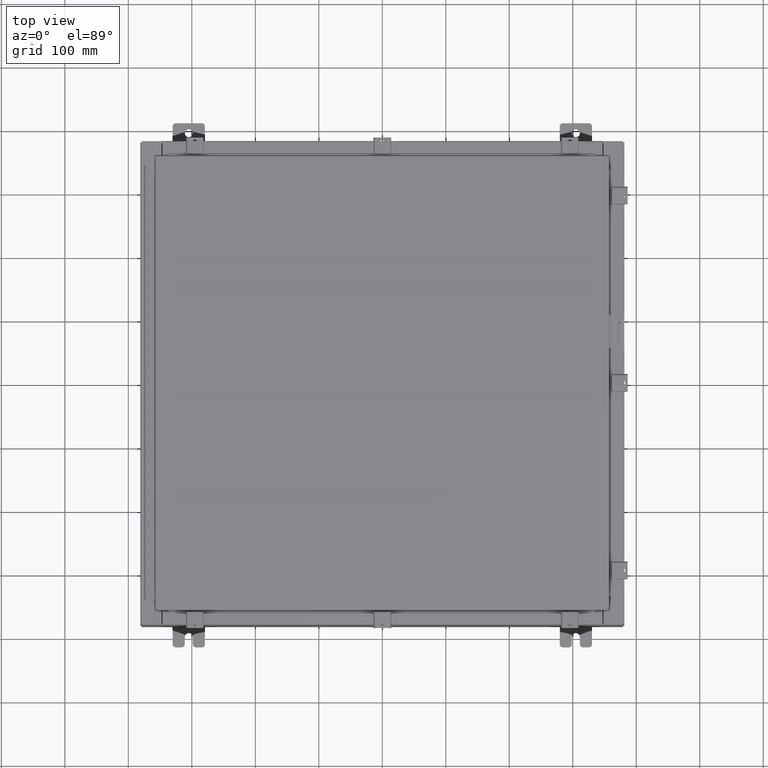
[diagram: clean part render]
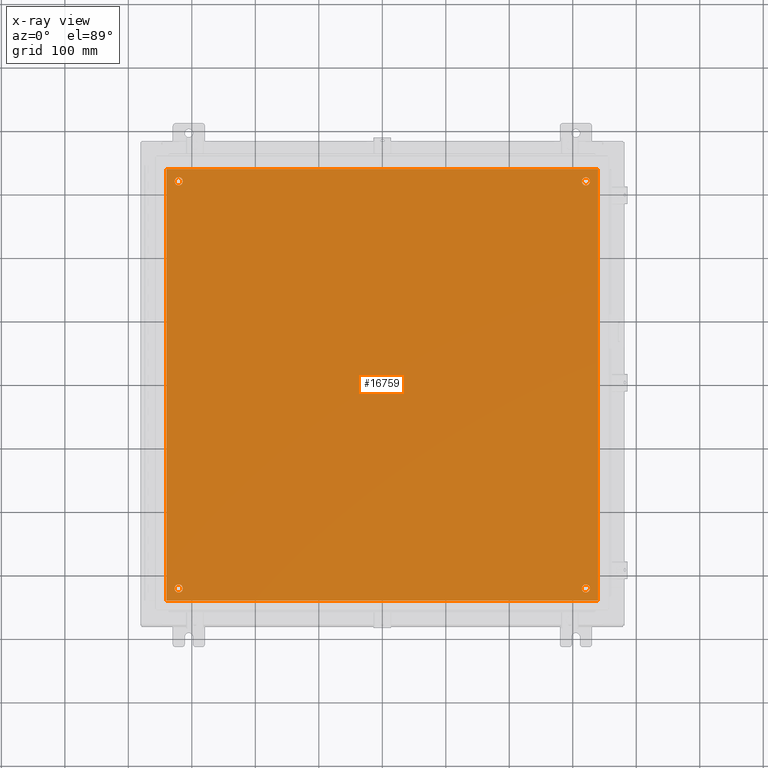
[diagram: x-ray — body ghosted, one internal face saturated and labeled with its STEP entity id]
A machine part, top view, then the same camera in x-ray: the body is ghosted and one INTERNAL B-rep face — a face not visible from any outside direction — is saturated and labeled: STEP entity #16759.
In plain terms, the highlighted planar face has unit normal (0, 0, -1).
Its self-contained STEP definition (entity closure, byte-faithful):
#632 = ORIENTED_EDGE ( 'NONE', *, *, #4933, .F. ) ;
#721 = CARTESIAN_POINT ( 'NONE',  ( -13.50000000000000000, -13.38299999999999900, -0.1040000000000009100 ) ) ;
#957 = DIRECTION ( 'NONE',  ( -0.0000000000000000000, -0.0000000000000000000, 1.000000000000000000 ) ) ;
#1029 = CARTESIAN_POINT ( 'NONE',  ( -12.37500000000000400, -12.62500000000000000, -0.1039999999999999800 ) ) ;
#1283 = CARTESIAN_POINT ( 'NONE',  ( 12.62500000000000400, 12.62500000000000000, -0.1039999999999999800 ) ) ;
#1324 = AXIS2_PLACEMENT_3D ( 'NONE', #30999, #16146, #36928 ) ;
#1536 = CIRCLE ( 'NONE', #5555, 0.2500000000000008900 ) ;
#1576 = CARTESIAN_POINT ( 'NONE',  ( 13.50000000000000000, 13.38299999999999900, -0.1040000000000009100 ) ) ;
#1604 = EDGE_LOOP ( 'NONE', ( #12507, #24484 ) ) ;
#1890 = CARTESIAN_POINT ( 'NONE',  ( 12.87500000000000500, -12.62500000000000000, -0.1039999999999999800 ) ) ;
#2802 = VERTEX_POINT ( 'NONE', #1029 ) ;
#3196 = FACE_BOUND ( 'NONE', #1604, .T. ) ;
#3348 = EDGE_CURVE ( 'NONE', #25382, #11533, #32634, .T. ) ;
#4284 = CARTESIAN_POINT ( 'NONE',  ( -13.38299999999999900, 13.38299999999999700, -0.1040000000000009100 ) ) ;
#4363 = ORIENTED_EDGE ( 'NONE', *, *, #26489, .T. ) ;
#4450 = EDGE_CURVE ( 'NONE', #8105, #29618, #29321, .T. ) ;
#4537 = DIRECTION ( 'NONE',  ( -1.000000000000000000, -0.0000000000000000000, -0.0000000000000000000 ) ) ;
#4933 = EDGE_CURVE ( 'NONE', #17863, #38444, #5484, .T. ) ;
#5465 = VECTOR ( 'NONE', #4537, 39.37007874015748100 ) ;
#5484 = LINE ( 'NONE', #26696, #20420 ) ;
#5529 = DIRECTION ( 'NONE',  ( -0.0000000000000000000, -0.0000000000000000000, 1.000000000000000000 ) ) ;
#5555 = AXIS2_PLACEMENT_3D ( 'NONE', #28579, #10747, #31598 ) ;
#5667 = EDGE_CURVE ( 'NONE', #20180, #16447, #19896, .T. ) ;
#6987 = ORIENTED_EDGE ( 'NONE', *, *, #30737, .T. ) ;
#7130 = CARTESIAN_POINT ( 'NONE',  ( 12.87500000000000500, 12.62500000000000000, -0.1039999999999999800 ) ) ;
#7399 = DIRECTION ( 'NONE',  ( -0.0000000000000000000, -0.0000000000000000000, 1.000000000000000000 ) ) ;
#8105 = VERTEX_POINT ( 'NONE', #1890 ) ;
#8388 = DIRECTION ( 'NONE',  ( -0.0000000000000000000, -0.0000000000000000000, 1.000000000000000000 ) ) ;
#8616 = ORIENTED_EDGE ( 'NONE', *, *, #5667, .F. ) ;
#10230 = CIRCLE ( 'NONE', #21802, 0.2500000000000008900 ) ;
#10361 = AXIS2_PLACEMENT_3D ( 'NONE', #18801, #957, #21792 ) ;
#10747 = DIRECTION ( 'NONE',  ( -0.0000000000000000000, -0.0000000000000000000, 1.000000000000000000 ) ) ;
#11061 = EDGE_LOOP ( 'NONE', ( #32241, #8616, #16658, #632 ) ) ;
#11145 = FACE_BOUND ( 'NONE', #32726, .T. ) ;
#11533 = VERTEX_POINT ( 'NONE', #18911 ) ;
#11595 = CARTESIAN_POINT ( 'NONE',  ( -13.38299999999999900, -13.38299999999999900, -0.1040000000000009100 ) ) ;
#12501 = LINE ( 'NONE', #1576, #5465 ) ;
#12507 = ORIENTED_EDGE ( 'NONE', *, *, #3348, .T. ) ;
#13092 = VERTEX_POINT ( 'NONE', #17776 ) ;
#13734 = DIRECTION ( 'NONE',  ( -0.0000000000000000000, -0.0000000000000000000, 1.000000000000000000 ) ) ;
#15532 = DIRECTION ( 'NONE',  ( -0.0000000000000000000, -0.0000000000000000000, 1.000000000000000000 ) ) ;
#16146 = DIRECTION ( 'NONE',  ( 0.0000000000000000000, 0.0000000000000000000, -1.000000000000000000 ) ) ;
#16171 = EDGE_CURVE ( 'NONE', #2802, #34077, #34807, .T. ) ;
#16447 = VERTEX_POINT ( 'NONE', #11595 ) ;
#16658 = ORIENTED_EDGE ( 'NONE', *, *, #18102, .F. ) ;
#16759 = ADVANCED_FACE ( 'NONE', ( #34016, #34909, #3196, #11145, #26058 ), #25028, .T. ) ;
#17528 = EDGE_CURVE ( 'NONE', #11533, #25382, #10230, .T. ) ;
#17776 = CARTESIAN_POINT ( 'NONE',  ( -12.87500000000000500, 12.62500000000000000, -0.1039999999999999800 ) ) ;
#17863 = VERTEX_POINT ( 'NONE', #26980 ) ;
#18102 = EDGE_CURVE ( 'NONE', #38444, #20180, #12501, .T. ) ;
#18181 = CIRCLE ( 'NONE', #35150, 0.2500000000000008900 ) ;
#18801 = CARTESIAN_POINT ( 'NONE',  ( 12.62500000000000400, -12.62500000000000000, -0.1039999999999999800 ) ) ;
#18911 = CARTESIAN_POINT ( 'NONE',  ( 12.37500000000000400, 12.62500000000000000, -0.1039999999999999800 ) ) ;
#19896 = LINE ( 'NONE', #32207, #27851 ) ;
#20180 = VERTEX_POINT ( 'NONE', #4284 ) ;
#20420 = VECTOR ( 'NONE', #21473, 39.37007874015748100 ) ;
#20510 = CARTESIAN_POINT ( 'NONE',  ( 12.37500000000000400, -12.62500000000000000, -0.1039999999999999800 ) ) ;
#20516 = CARTESIAN_POINT ( 'NONE',  ( -12.87500000000000500, -12.62500000000000000, -0.1039999999999999800 ) ) ;
#20799 = EDGE_LOOP ( 'NONE', ( #26073, #4363 ) ) ;
#20865 = DIRECTION ( 'NONE',  ( -1.000000000000000000, 0.0000000000000000000, 0.0000000000000000000 ) ) ;
#21473 = DIRECTION ( 'NONE',  ( 0.0000000000000000000, 1.000000000000000000, 0.0000000000000000000 ) ) ;
#21677 = CIRCLE ( 'NONE', #29259, 0.2500000000000008900 ) ;
#21792 = DIRECTION ( 'NONE',  ( -1.000000000000000000, 0.0000000000000000000, 0.0000000000000000000 ) ) ;
#21802 = AXIS2_PLACEMENT_3D ( 'NONE', #31582, #13734, #34574 ) ;
#23417 = CARTESIAN_POINT ( 'NONE',  ( -12.62500000000000400, -12.62500000000000000, -0.1039999999999999800 ) ) ;
#23998 = LINE ( 'NONE', #721, #29103 ) ;
#24482 = ORIENTED_EDGE ( 'NONE', *, *, #34811, .T. ) ;
#24484 = ORIENTED_EDGE ( 'NONE', *, *, #17528, .T. ) ;
#25028 = PLANE ( 'NONE',  #1324 ) ;
#25324 = CARTESIAN_POINT ( 'NONE',  ( -12.62500000000000400, -12.62500000000000000, -0.1039999999999999800 ) ) ;
#25382 = VERTEX_POINT ( 'NONE', #7130 ) ;
#26058 = FACE_OUTER_BOUND ( 'NONE', #11061, .T. ) ;
#26073 = ORIENTED_EDGE ( 'NONE', *, *, #4450, .T. ) ;
#26262 = AXIS2_PLACEMENT_3D ( 'NONE', #1283, #8388, #20865 ) ;
#26410 = DIRECTION ( 'NONE',  ( -1.000000000000000000, 0.0000000000000000000, 0.0000000000000000000 ) ) ;
#26489 = EDGE_CURVE ( 'NONE', #29618, #8105, #33647, .T. ) ;
#26696 = CARTESIAN_POINT ( 'NONE',  ( 13.38299999999999900, -13.38299999999999700, -0.1040000000000009100 ) ) ;
#26980 = CARTESIAN_POINT ( 'NONE',  ( 13.38299999999999900, -13.38299999999999700, -0.1040000000000009100 ) ) ;
#27526 = AXIS2_PLACEMENT_3D ( 'NONE', #25324, #7399, #28291 ) ;
#27851 = VECTOR ( 'NONE', #32124, 39.37007874015748100 ) ;
#28291 = DIRECTION ( 'NONE',  ( -1.000000000000000000, 0.0000000000000000000, 0.0000000000000000000 ) ) ;
#28579 = CARTESIAN_POINT ( 'NONE',  ( -12.62500000000000400, 12.62500000000000000, -0.1039999999999999800 ) ) ;
#28781 = CARTESIAN_POINT ( 'NONE',  ( 13.38299999999999900, 13.38299999999999700, -0.1040000000000009100 ) ) ;
#29103 = VECTOR ( 'NONE', #36518, 39.37007874015748100 ) ;
#29259 = AXIS2_PLACEMENT_3D ( 'NONE', #33414, #15532, #36355 ) ;
#29321 = CIRCLE ( 'NONE', #37756, 0.2500000000000008900 ) ;
#29618 = VERTEX_POINT ( 'NONE', #20510 ) ;
#30737 = EDGE_CURVE ( 'NONE', #34077, #2802, #18181, .T. ) ;
#30999 = CARTESIAN_POINT ( 'NONE',  ( 0.0000000000000000000, 0.0000000000000000000, -0.1039999999999999800 ) ) ;
#31582 = CARTESIAN_POINT ( 'NONE',  ( 12.62500000000000400, 12.62500000000000000, -0.1039999999999999800 ) ) ;
#31598 = DIRECTION ( 'NONE',  ( -1.000000000000000000, 0.0000000000000000000, 0.0000000000000000000 ) ) ;
#31993 = ORIENTED_EDGE ( 'NONE', *, *, #36090, .T. ) ;
#32124 = DIRECTION ( 'NONE',  ( 0.0000000000000000000, -1.000000000000000000, 0.0000000000000000000 ) ) ;
#32207 = CARTESIAN_POINT ( 'NONE',  ( -13.38299999999999900, 13.38299999999999700, -0.1040000000000009100 ) ) ;
#32241 = ORIENTED_EDGE ( 'NONE', *, *, #34336, .F. ) ;
#32634 = CIRCLE ( 'NONE', #26262, 0.2500000000000008900 ) ;
#32726 = EDGE_LOOP ( 'NONE', ( #24482, #31993 ) ) ;
#33414 = CARTESIAN_POINT ( 'NONE',  ( -12.62500000000000400, 12.62500000000000000, -0.1039999999999999800 ) ) ;
#33647 = CIRCLE ( 'NONE', #10361, 0.2500000000000008900 ) ;
#34016 = FACE_BOUND ( 'NONE', #35122, .T. ) ;
#34077 = VERTEX_POINT ( 'NONE', #20516 ) ;
#34336 = EDGE_CURVE ( 'NONE', #16447, #17863, #23998, .T. ) ;
#34563 = VERTEX_POINT ( 'NONE', #34821 ) ;
#34574 = DIRECTION ( 'NONE',  ( -1.000000000000000000, 0.0000000000000000000, 0.0000000000000000000 ) ) ;
#34577 = ORIENTED_EDGE ( 'NONE', *, *, #16171, .T. ) ;
#34807 = CIRCLE ( 'NONE', #27526, 0.2500000000000008900 ) ;
#34811 = EDGE_CURVE ( 'NONE', #34563, #13092, #21677, .T. ) ;
#34821 = CARTESIAN_POINT ( 'NONE',  ( -12.37500000000000400, 12.62500000000000000, -0.1039999999999999800 ) ) ;
#34909 = FACE_BOUND ( 'NONE', #20799, .T. ) ;
#35122 = EDGE_LOOP ( 'NONE', ( #34577, #6987 ) ) ;
#35150 = AXIS2_PLACEMENT_3D ( 'NONE', #23417, #5529, #26410 ) ;
#35242 = DIRECTION ( 'NONE',  ( -1.000000000000000000, 0.0000000000000000000, 0.0000000000000000000 ) ) ;
#35364 = DIRECTION ( 'NONE',  ( -0.0000000000000000000, -0.0000000000000000000, 1.000000000000000000 ) ) ;
#35629 = CARTESIAN_POINT ( 'NONE',  ( 12.62500000000000400, -12.62500000000000000, -0.1039999999999999800 ) ) ;
#36090 = EDGE_CURVE ( 'NONE', #13092, #34563, #1536, .T. ) ;
#36355 = DIRECTION ( 'NONE',  ( -1.000000000000000000, 0.0000000000000000000, 0.0000000000000000000 ) ) ;
#36518 = DIRECTION ( 'NONE',  ( 1.000000000000000000, -0.0000000000000000000, -0.0000000000000000000 ) ) ;
#36928 = DIRECTION ( 'NONE',  ( -1.000000000000000000, 0.0000000000000000000, -0.0000000000000000000 ) ) ;
#37756 = AXIS2_PLACEMENT_3D ( 'NONE', #35629, #35364, #35242 ) ;
#38444 = VERTEX_POINT ( 'NONE', #28781 ) ;